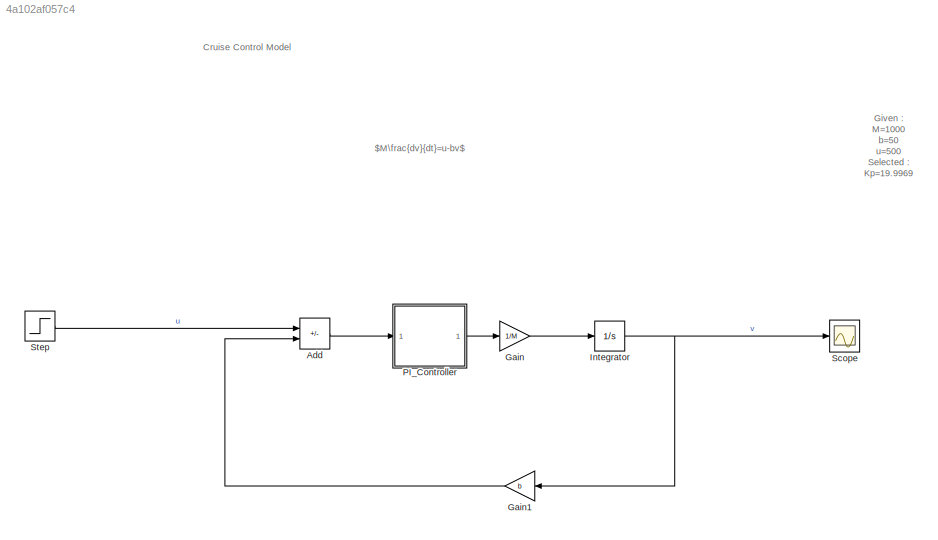
MODEL slx_4a102af057c4
KIND model
CONFIG AbsTol = auto
CONFIG EnableMultiTasking = off
CONFIG FixedStep = auto
CONFIG InitFcn = M=1000;\nb=50;\nu=500;\n\nKp=19.9969;\nKi=0.34998;\nTs=3.36;\n
CONFIG MaxStep = auto
CONFIG MinStep = auto
CONFIG PostLoadFcn = M=1000;\nb=50;\nu=500;\n\nKp=19.9969;\nKi=0.34998;\nTs=3.36;
CONFIG RelTol = 1e-3
CONFIG SampleTimeConstraint = Unconstrained
CONFIG SolverName = VariableStepAuto
CONFIG StartTime = 0.0
CONFIG StopTime = 120
BLOCK [Sum] Add
  IconShape = rectangular
  Inputs = +-
  Ports = [2, 1]
BLOCK [Gain] Gain
  Gain = 1/M
BLOCK [Gain] Gain1
  Gain = b
  NameLocation = top
BLOCK [Integrator] Integrator
  Ports = [1, 1]
BLOCK [ModelReference] PI_Controller
  ModelNameDialog = PI_Controller
  ModelReferenceVersion = 1.2
  Ports = [1, 1]
BLOCK [Scope] Scope
  Floating = off
  NumInputPorts = 1
  Ports = [1]
  ScopeSpecificationString = Simulink.scopes.TimeScopeBlockCfg('CurrentConfiguration', extmgr.ConfigurationSet(extmgr.Configuration('Core','General UI',true),extmgr.Configuration('Core','Source UI',true),extmgr.Configuration('Sources','WiredSimulink',true),extmgr.Configuration('Visuals','Time Domain',true,'SerializedDisplays',{struct('MinYLimReal','-1.25012','MaxYLimReal','11.25104','YLabelReal','','MinYLimMag','0.00000','Max...<+1352ch>
BLOCK [Step] Step
  After = u
  SampleTime = 0
  Time = 0
ANNOTATION (root): Cruise Control Model
ANNOTATION (root): Given : M=1000 b=50 u=500 Selected : Kp=19.9969 Ki=0.34998 Ts=3.36
ANNOTATION (root): $M\frac{dv}{dt}=u-bv$
LINE Add:1 -> PI_Controller:1
LINE Gain1:1 -> Add:2
LINE Gain:1 -> Integrator:1
NET Integrator:1 -> Gain1:1, Scope:1
LINE PI_Controller:1 -> Gain:1
LINE Step:1 -> Add:1
note: NET lines group one-source signal fan-out (src -> all destinations, sorted); 1:1 wires keep LINE
